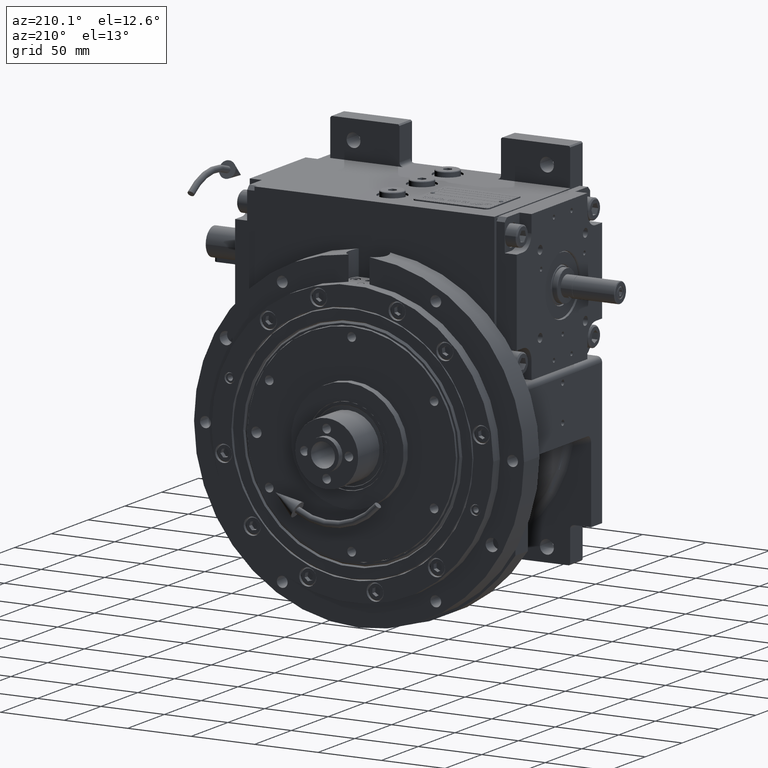
[diagram: clean part render]
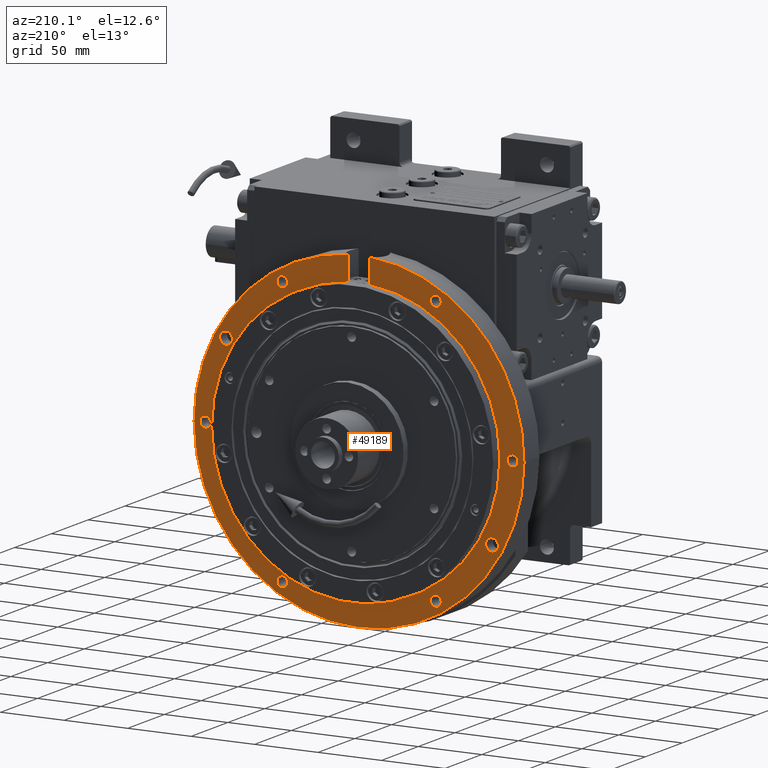
[diagram: same view with one face highlighted and labeled with its STEP entity id]
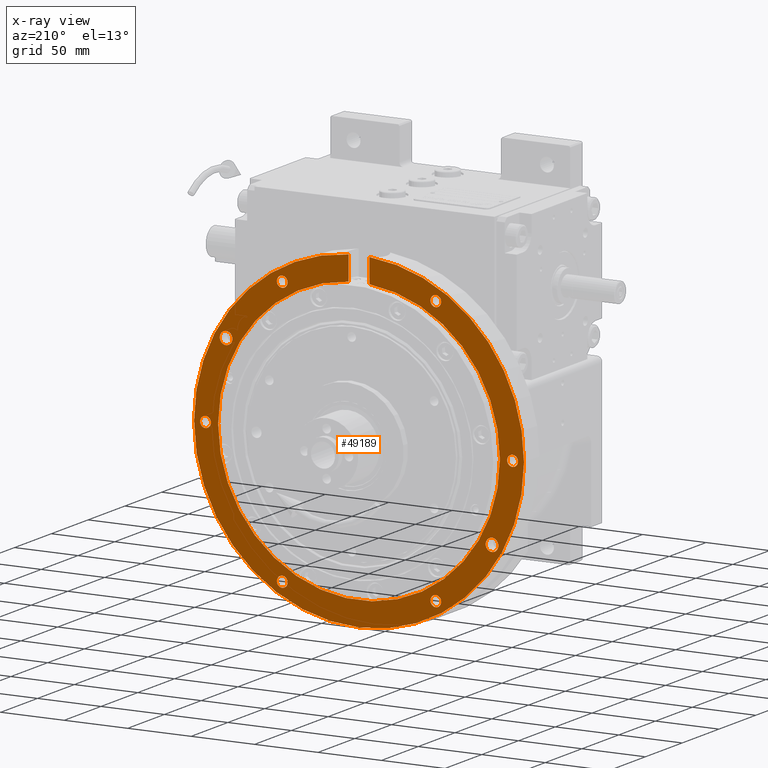
[diagram: x-ray of the same camera — body ghosted, the highlighted face saturated]
A machine part, auxiliary view. The second image highlights one B-rep face of the part: STEP entity #49189.
The next image is the same camera in x-ray: the body ghosted, the highlighted face saturated — about 0% of this face is hidden behind the body in this view.
In plain terms, the highlighted planar face has unit normal (0, -1, 0).
Its self-contained STEP definition (entity closure, byte-faithful):
#76 = ORIENTED_EDGE ( 'NONE', *, *, #48859, .F. ) ;
#155 = DIRECTION ( 'NONE',  ( 0.000000000000000000, 0.000000000000000000, 1.000000000000000000 ) ) ;
#794 = EDGE_LOOP ( 'NONE', ( #27148, #30465 ) ) ;
#1163 = DIRECTION ( 'NONE',  ( -1.000000000000000000, 0.000000000000000000, 0.000000000000000000 ) ) ;
#1235 = VERTEX_POINT ( 'NONE', #15329 ) ;
#1530 = EDGE_CURVE ( 'NONE', #68697, #44295, #18792, .T. ) ;
#1720 = EDGE_LOOP ( 'NONE', ( #60538, #9669 ) ) ;
#2411 = DIRECTION ( 'NONE',  ( -1.000000000000000000, -5.224578939412495427E-15, 0.000000000000000000 ) ) ;
#2748 = ORIENTED_EDGE ( 'NONE', *, *, #39788, .F. ) ;
#3550 = EDGE_CURVE ( 'NONE', #31178, #12717, #4723, .T. ) ;
#3655 = CARTESIAN_POINT ( 'NONE',  ( 60.50000000000000000, -104.7890738579170034, 21.00000000000000000 ) ) ;
#3709 = ORIENTED_EDGE ( 'NONE', *, *, #47733, .T. ) ;
#3948 = EDGE_CURVE ( 'NONE', #48028, #14514, #44547, .T. ) ;
#3954 = DIRECTION ( 'NONE',  ( 0.000000000000000000, 0.000000000000000000, 1.000000000000000000 ) ) ;
#4044 = LINE ( 'NONE', #37652, #31049 ) ;
#4179 = VERTEX_POINT ( 'NONE', #46237 ) ;
#4294 = AXIS2_PLACEMENT_3D ( 'NONE', #14674, #63747, #52294 ) ;
#4323 = CARTESIAN_POINT ( 'NONE',  ( 60.50000000000000000, 104.7890738579170034, 21.00000000000000000 ) ) ;
#4516 = CARTESIAN_POINT ( 'NONE',  ( -60.50000000000000000, 104.7890738579170034, 21.00000000000000000 ) ) ;
#4723 = CIRCLE ( 'NONE', #32185, 110.9999999999999858 ) ;
#4840 = CARTESIAN_POINT ( 'NONE',  ( -60.50000000000000000, -104.7890738579170034, 21.00000000000000000 ) ) ;
#4870 = EDGE_CURVE ( 'NONE', #12717, #39586, #28257, .T. ) ;
#5539 = AXIS2_PLACEMENT_3D ( 'NONE', #9894, #26378, #52527 ) ;
#6182 = DIRECTION ( 'NONE',  ( -1.000000000000000000, 0.000000000000000000, 0.000000000000000000 ) ) ;
#6297 = DIRECTION ( 'NONE',  ( 1.000000000000000000, 2.089831575764998299E-16, 0.000000000000000000 ) ) ;
#6974 = CARTESIAN_POINT ( 'NONE',  ( 99.78907385791659124, -60.50000000000081712, 21.00000000000000000 ) ) ;
#7702 = CARTESIAN_POINT ( 'NONE',  ( 8.291561975888500413, -129.7353074532911990, 21.00000000000000000 ) ) ;
#8002 = EDGE_LOOP ( 'NONE', ( #49177, #67969 ) ) ;
#8017 = CARTESIAN_POINT ( 'NONE',  ( -3.375077994860475252E-14, -8.312794896880859596E-15, 21.00000000000000000 ) ) ;
#8108 = CARTESIAN_POINT ( 'NONE',  ( 125.2500000000000000, -2.925257564283509760E-15, 21.00000000000000000 ) ) ;
#8380 = VERTEX_POINT ( 'NONE', #16684 ) ;
#8381 = DIRECTION ( 'NONE',  ( 1.000000000000000000, 0.000000000000000000, 0.000000000000000000 ) ) ;
#9301 = CARTESIAN_POINT ( 'NONE',  ( -60.50000000000000000, -104.7890738579170034, 21.00000000000000000 ) ) ;
#9467 = CARTESIAN_POINT ( 'NONE',  ( -8.291561975888470215, -110.6898821031081894, 21.00000000000000000 ) ) ;
#9623 = EDGE_CURVE ( 'NONE', #40041, #69851, #21158, .T. ) ;
#9669 = ORIENTED_EDGE ( 'NONE', *, *, #63326, .F. ) ;
#9894 = CARTESIAN_POINT ( 'NONE',  ( -104.7890738579170034, 60.50000000000009237, 21.00000000000000000 ) ) ;
#9932 = EDGE_CURVE ( 'NONE', #69679, #20883, #17758, .T. ) ;
#10054 = VERTEX_POINT ( 'NONE', #67519 ) ;
#10635 = VERTEX_POINT ( 'NONE', #18361 ) ;
#10848 = EDGE_CURVE ( 'NONE', #14514, #48028, #62380, .T. ) ;
#10955 = DIRECTION ( 'NONE',  ( 0.000000000000000000, 0.000000000000000000, 1.000000000000000000 ) ) ;
#11481 = CARTESIAN_POINT ( 'NONE',  ( -8.291561975888519953, -129.7353074532911990, 21.00000000000000000 ) ) ;
#11541 = CARTESIAN_POINT ( 'NONE',  ( -60.50000000000000000, 104.7890738579170034, 21.00000000000000000 ) ) ;
#11825 = ORIENTED_EDGE ( 'NONE', *, *, #4870, .F. ) ;
#12002 = CIRCLE ( 'NONE', #49722, 111.0000000000000000 ) ;
#12307 = ORIENTED_EDGE ( 'NONE', *, *, #52577, .T. ) ;
#12660 = CARTESIAN_POINT ( 'NONE',  ( -64.75000000000000000, -104.7890738579170034, 21.00000000000000000 ) ) ;
#12717 = VERTEX_POINT ( 'NONE', #30722 ) ;
#13050 = FACE_OUTER_BOUND ( 'NONE', #21173, .T. ) ;
#13152 = AXIS2_PLACEMENT_3D ( 'NONE', #43552, #44956, #6297 ) ;
#13555 = CARTESIAN_POINT ( 'NONE',  ( -7.105427357600998703E-15, 1.421085471520200056E-14, 21.00000000000000000 ) ) ;
#14197 = DIRECTION ( 'NONE',  ( 1.000000000000000000, 0.000000000000000000, 0.000000000000000000 ) ) ;
#14471 = DIRECTION ( 'NONE',  ( 0.000000000000000000, 0.000000000000000000, -1.000000000000000000 ) ) ;
#14514 = VERTEX_POINT ( 'NONE', #65434 ) ;
#14674 = CARTESIAN_POINT ( 'NONE',  ( -3.375077994860475252E-14, -8.312794896880859596E-15, 21.00000000000000000 ) ) ;
#14862 = ORIENTED_EDGE ( 'NONE', *, *, #28258, .F. ) ;
#15285 = DIRECTION ( 'NONE',  ( 1.000000000000000000, 0.000000000000000000, 0.000000000000000000 ) ) ;
#15329 = CARTESIAN_POINT ( 'NONE',  ( -99.78907385791700335, 60.50000000000009237, 21.00000000000000000 ) ) ;
#15840 = CIRCLE ( 'NONE', #34116, 130.0000000000000568 ) ;
#16291 = DIRECTION ( 'NONE',  ( -1.000000000000000000, 0.000000000000000000, 0.000000000000000000 ) ) ;
#16476 = ORIENTED_EDGE ( 'NONE', *, *, #35099, .T. ) ;
#16684 = CARTESIAN_POINT ( 'NONE',  ( 8.291561975888500413, -129.7353074532911990, 21.00000000000000000 ) ) ;
#17440 = CARTESIAN_POINT ( 'NONE',  ( 56.25000000000000000, 104.7890738579170034, 21.00000000000000000 ) ) ;
#17758 = CIRCLE ( 'NONE', #13152, 4.250000000000003553 ) ;
#18107 = LINE ( 'NONE', #7702, #35313 ) ;
#18361 = CARTESIAN_POINT ( 'NONE',  ( -56.25000000000000000, 104.7890738579170034, 21.00000000000000000 ) ) ;
#18791 = FACE_BOUND ( 'NONE', #47224, .T. ) ;
#18792 = CIRCLE ( 'NONE', #58831, 4.250000000000003553 ) ;
#19189 = ORIENTED_EDGE ( 'NONE', *, *, #3948, .F. ) ;
#19233 = VERTEX_POINT ( 'NONE', #17440 ) ;
#19855 = FACE_BOUND ( 'NONE', #8002, .T. ) ;
#19912 = CARTESIAN_POINT ( 'NONE',  ( -125.2500000000000000, 7.408868440625379257E-15, 21.00000000000000000 ) ) ;
#19948 = CARTESIAN_POINT ( 'NONE',  ( 60.50000000000000000, -104.7890738579170034, 21.00000000000000000 ) ) ;
#20018 = DIRECTION ( 'NONE',  ( 1.000000000000000000, -1.280257181549730054E-16, 0.000000000000000000 ) ) ;
#20104 = DIRECTION ( 'NONE',  ( 0.000000000000000000, 0.000000000000000000, 1.000000000000000000 ) ) ;
#20883 = VERTEX_POINT ( 'NONE', #35065 ) ;
#21158 = CIRCLE ( 'NONE', #56565, 4.250000000000003553 ) ;
#21173 = EDGE_LOOP ( 'NONE', ( #24669, #11825, #32281, #69549, #3709, #16476, #45170, #12307 ) ) ;
#21302 = CIRCLE ( 'NONE', #55553, 4.250000000000003553 ) ;
#22669 = DIRECTION ( 'NONE',  ( 0.000000000000000000, 0.000000000000000000, 1.000000000000000000 ) ) ;
#22809 = EDGE_CURVE ( 'NONE', #27720, #42838, #65696, .T. ) ;
#23059 = ORIENTED_EDGE ( 'NONE', *, *, #61753, .F. ) ;
#23415 = DIRECTION ( 'NONE',  ( -1.000000000000000000, 0.000000000000000000, 0.000000000000000000 ) ) ;
#23720 = DIRECTION ( 'NONE',  ( 0.07469875653953610140, -0.9972061450730471677, 0.000000000000000000 ) ) ;
#23781 = EDGE_CURVE ( 'NONE', #39586, #43405, #12002, .T. ) ;
#23923 = CARTESIAN_POINT ( 'NONE',  ( -121.0000000000000000, 2.220446049250314659E-14, 21.00000000000000000 ) ) ;
#24032 = EDGE_CURVE ( 'NONE', #63599, #10054, #48666, .T. ) ;
#24186 = DIRECTION ( 'NONE',  ( -9.326947583153779291E-17, 1.000000000000000000, 0.000000000000000000 ) ) ;
#24640 = VERTEX_POINT ( 'NONE', #25714 ) ;
#24669 = ORIENTED_EDGE ( 'NONE', *, *, #23781, .F. ) ;
#24729 = DIRECTION ( 'NONE',  ( 0.06378124596837327076, -0.9979639034868555969, 0.000000000000000000 ) ) ;
#25309 = DIRECTION ( 'NONE',  ( 1.000000000000000000, 0.000000000000000000, 0.000000000000000000 ) ) ;
#25379 = DIRECTION ( 'NONE',  ( 0.000000000000000000, 0.000000000000000000, 1.000000000000000000 ) ) ;
#25514 = DIRECTION ( 'NONE',  ( 0.000000000000000000, 0.000000000000000000, 1.000000000000000000 ) ) ;
#25714 = CARTESIAN_POINT ( 'NONE',  ( -109.7890738579169891, 60.50000000000009237, 21.00000000000000000 ) ) ;
#25734 = VERTEX_POINT ( 'NONE', #41906 ) ;
#25808 = DIRECTION ( 'NONE',  ( 1.000000000000000000, 0.000000000000000000, 0.000000000000000000 ) ) ;
#26378 = DIRECTION ( 'NONE',  ( 0.000000000000000000, 0.000000000000000000, 1.000000000000000000 ) ) ;
#26745 = CARTESIAN_POINT ( 'NONE',  ( -104.7890738579170034, 60.50000000000009237, 21.00000000000000000 ) ) ;
#27148 = ORIENTED_EDGE ( 'NONE', *, *, #44430, .F. ) ;
#27358 = EDGE_LOOP ( 'NONE', ( #19189, #61351 ) ) ;
#27720 = VERTEX_POINT ( 'NONE', #36014 ) ;
#27952 = DIRECTION ( 'NONE',  ( 0.000000000000000000, 0.000000000000000000, 1.000000000000000000 ) ) ;
#28201 = CIRCLE ( 'NONE', #68222, 4.250000000000003553 ) ;
#28257 = CIRCLE ( 'NONE', #37381, 111.0000000000000000 ) ;
#28258 = EDGE_CURVE ( 'NONE', #69851, #40041, #30099, .T. ) ;
#28426 = CARTESIAN_POINT ( 'NONE',  ( 104.7890738579165770, -60.50000000000081712, 21.00000000000000000 ) ) ;
#29176 = DIRECTION ( 'NONE',  ( 0.06378124596837327076, -0.9979639034868555969, 0.000000000000000000 ) ) ;
#29527 = DIRECTION ( 'NONE',  ( 0.000000000000000000, 0.000000000000000000, 1.000000000000000000 ) ) ;
#29912 = CARTESIAN_POINT ( 'NONE',  ( 2.842170943040399481E-14, 2.842170943040399481E-14, 21.00000000000000000 ) ) ;
#30099 = CIRCLE ( 'NONE', #54126, 4.250000000000003553 ) ;
#30465 = ORIENTED_EDGE ( 'NONE', *, *, #1530, .F. ) ;
#30722 = CARTESIAN_POINT ( 'NONE',  ( 111.0000000000000000, -9.062386313690408852E-15, 21.00000000000000000 ) ) ;
#30972 = EDGE_LOOP ( 'NONE', ( #14862, #57805 ) ) ;
#31049 = VECTOR ( 'NONE', #69580, 1000.000000000000000 ) ;
#31178 = VERTEX_POINT ( 'NONE', #56938 ) ;
#31720 = DIRECTION ( 'NONE',  ( 0.000000000000000000, 0.000000000000000000, 1.000000000000000000 ) ) ;
#32185 = AXIS2_PLACEMENT_3D ( 'NONE', #62370, #67746, #23720 ) ;
#32281 = ORIENTED_EDGE ( 'NONE', *, *, #3550, .F. ) ;
#32965 = DIRECTION ( 'NONE',  ( 1.000000000000000000, -5.224578939412495427E-15, 0.000000000000000000 ) ) ;
#33948 = CIRCLE ( 'NONE', #67156, 4.250000000000003553 ) ;
#34116 = AXIS2_PLACEMENT_3D ( 'NONE', #8017, #29527, #29176 ) ;
#34279 = AXIS2_PLACEMENT_3D ( 'NONE', #4323, #20104, #42261 ) ;
#34408 = CARTESIAN_POINT ( 'NONE',  ( -111.0000000000000000, 1.359357947053561880E-14, 21.00000000000000000 ) ) ;
#34893 = FACE_BOUND ( 'NONE', #30972, .T. ) ;
#35065 = CARTESIAN_POINT ( 'NONE',  ( 116.7500000000000000, -2.469622813541794926E-15, 21.00000000000000000 ) ) ;
#35099 = EDGE_CURVE ( 'NONE', #4179, #27720, #50041, .T. ) ;
#35313 = VECTOR ( 'NONE', #24186, 1000.000000000000000 ) ;
#35393 = CIRCLE ( 'NONE', #64001, 4.250000000000003553 ) ;
#36014 = CARTESIAN_POINT ( 'NONE',  ( -130.0000000000000000, 1.592040838891559450E-14, 21.00000000000000000 ) ) ;
#36390 = CIRCLE ( 'NONE', #5539, 4.999999999999990230 ) ;
#36766 = VERTEX_POINT ( 'NONE', #46824 ) ;
#37381 = AXIS2_PLACEMENT_3D ( 'NONE', #13555, #25379, #20018 ) ;
#37652 = CARTESIAN_POINT ( 'NONE',  ( -8.291561975888500413, -129.7353074532911990, 21.00000000000000000 ) ) ;
#38927 = DIRECTION ( 'NONE',  ( 0.000000000000000000, 0.000000000000000000, 1.000000000000000000 ) ) ;
#39491 = EDGE_LOOP ( 'NONE', ( #76, #2748 ) ) ;
#39586 = VERTEX_POINT ( 'NONE', #34408 ) ;
#39788 = EDGE_CURVE ( 'NONE', #19233, #25734, #67466, .T. ) ;
#40041 = VERTEX_POINT ( 'NONE', #19912 ) ;
#40460 = AXIS2_PLACEMENT_3D ( 'NONE', #3655, #25514, #47343 ) ;
#40793 = CARTESIAN_POINT ( 'NONE',  ( -3.375077994860475252E-14, -8.312794896880859596E-15, 21.00000000000000000 ) ) ;
#41311 = EDGE_LOOP ( 'NONE', ( #61413, #60021 ) ) ;
#41665 = CIRCLE ( 'NONE', #55430, 4.250000000000003553 ) ;
#41748 = CARTESIAN_POINT ( 'NONE',  ( -116.7500000000000000, 6.953233689883671129E-15, 21.00000000000000000 ) ) ;
#41906 = CARTESIAN_POINT ( 'NONE',  ( 64.75000000000000000, 104.7890738579170034, 21.00000000000000000 ) ) ;
#41924 = EDGE_CURVE ( 'NONE', #1235, #24640, #51710, .T. ) ;
#42027 = AXIS2_PLACEMENT_3D ( 'NONE', #55429, #38927, #42646 ) ;
#42261 = DIRECTION ( 'NONE',  ( -1.000000000000000000, 0.000000000000000000, 0.000000000000000000 ) ) ;
#42592 = CARTESIAN_POINT ( 'NONE',  ( -56.25000000000000000, -104.7890738579170034, 21.00000000000000000 ) ) ;
#42646 = DIRECTION ( 'NONE',  ( -1.000000000000000000, 0.000000000000000000, 0.000000000000000000 ) ) ;
#42838 = VERTEX_POINT ( 'NONE', #11481 ) ;
#43405 = VERTEX_POINT ( 'NONE', #9467 ) ;
#43443 = AXIS2_PLACEMENT_3D ( 'NONE', #57448, #14471, #8381 ) ;
#43532 = DIRECTION ( 'NONE',  ( 1.000000000000000000, 0.000000000000000000, 0.000000000000000000 ) ) ;
#43552 = CARTESIAN_POINT ( 'NONE',  ( 121.0000000000000000, -8.881784197001250351E-16, 21.00000000000000000 ) ) ;
#44295 = VERTEX_POINT ( 'NONE', #42592 ) ;
#44430 = EDGE_CURVE ( 'NONE', #44295, #68697, #21302, .T. ) ;
#44547 = CIRCLE ( 'NONE', #67461, 4.250000000000003553 ) ;
#44832 = CARTESIAN_POINT ( 'NONE',  ( 64.75000000000000000, -104.7890738579170034, 21.00000000000000000 ) ) ;
#44956 = DIRECTION ( 'NONE',  ( 0.000000000000000000, 0.000000000000000000, 1.000000000000000000 ) ) ;
#45170 = ORIENTED_EDGE ( 'NONE', *, *, #22809, .T. ) ;
#45643 = FACE_BOUND ( 'NONE', #1720, .T. ) ;
#46237 = CARTESIAN_POINT ( 'NONE',  ( 130.0000000000000000, 0.000000000000000000, 21.00000000000000000 ) ) ;
#46700 = PLANE ( 'NONE',  #43443 ) ;
#46824 = CARTESIAN_POINT ( 'NONE',  ( -64.75000000000000000, 104.7890738579170034, 21.00000000000000000 ) ) ;
#47224 = EDGE_LOOP ( 'NONE', ( #55390, #23059 ) ) ;
#47343 = DIRECTION ( 'NONE',  ( -1.000000000000000000, 0.000000000000000000, 0.000000000000000000 ) ) ;
#47600 = CARTESIAN_POINT ( 'NONE',  ( 60.50000000000000000, 104.7890738579170034, 21.00000000000000000 ) ) ;
#47733 = EDGE_CURVE ( 'NONE', #8380, #4179, #15840, .T. ) ;
#48028 = VERTEX_POINT ( 'NONE', #44832 ) ;
#48666 = CIRCLE ( 'NONE', #65854, 4.999999999999990230 ) ;
#48859 = EDGE_CURVE ( 'NONE', #25734, #19233, #35393, .T. ) ;
#49177 = ORIENTED_EDGE ( 'NONE', *, *, #61143, .F. ) ;
#49189 = ADVANCED_FACE ( 'NONE', ( #51382, #45643, #62814, #34893, #19855, #67503, #18791, #62110, #13050 ), #46700, .F. ) ;
#49619 = AXIS2_PLACEMENT_3D ( 'NONE', #40793, #58013, #24729 ) ;
#49722 = AXIS2_PLACEMENT_3D ( 'NONE', #29912, #58194, #52810 ) ;
#49874 = CARTESIAN_POINT ( 'NONE',  ( 121.0000000000000000, 0.000000000000000000, 21.00000000000000000 ) ) ;
#50041 = CIRCLE ( 'NONE', #4294, 130.0000000000000568 ) ;
#50217 = DIRECTION ( 'NONE',  ( 0.000000000000000000, 0.000000000000000000, 1.000000000000000000 ) ) ;
#51202 = CIRCLE ( 'NONE', #42027, 4.999999999999990230 ) ;
#51382 = FACE_BOUND ( 'NONE', #41311, .T. ) ;
#51710 = CIRCLE ( 'NONE', #57433, 4.999999999999990230 ) ;
#52294 = DIRECTION ( 'NONE',  ( 0.06378124596837327076, -0.9979639034868555969, 0.000000000000000000 ) ) ;
#52527 = DIRECTION ( 'NONE',  ( 1.000000000000000000, 0.000000000000000000, 0.000000000000000000 ) ) ;
#52577 = EDGE_CURVE ( 'NONE', #42838, #43405, #4044, .T. ) ;
#52810 = DIRECTION ( 'NONE',  ( -1.000000000000000000, -1.335867563952105914E-16, 0.000000000000000000 ) ) ;
#54126 = AXIS2_PLACEMENT_3D ( 'NONE', #60880, #27952, #32965 ) ;
#55390 = ORIENTED_EDGE ( 'NONE', *, *, #9932, .F. ) ;
#55429 = CARTESIAN_POINT ( 'NONE',  ( 104.7890738579165770, -60.50000000000081712, 21.00000000000000000 ) ) ;
#55430 = AXIS2_PLACEMENT_3D ( 'NONE', #11541, #22669, #6182 ) ;
#55553 = AXIS2_PLACEMENT_3D ( 'NONE', #9301, #3954, #25808 ) ;
#56565 = AXIS2_PLACEMENT_3D ( 'NONE', #23923, #57557, #2411 ) ;
#56938 = CARTESIAN_POINT ( 'NONE',  ( 8.291561975888509295, -110.6898821031081894, 21.00000000000000000 ) ) ;
#57433 = AXIS2_PLACEMENT_3D ( 'NONE', #26745, #69380, #15285 ) ;
#57448 = CARTESIAN_POINT ( 'NONE',  ( 0.000000000000000000, 0.000000000000000000, 21.00000000000000000 ) ) ;
#57474 = EDGE_CURVE ( 'NONE', #36766, #10635, #41665, .T. ) ;
#57557 = DIRECTION ( 'NONE',  ( 0.000000000000000000, 0.000000000000000000, 1.000000000000000000 ) ) ;
#57805 = ORIENTED_EDGE ( 'NONE', *, *, #9623, .F. ) ;
#57896 = DIRECTION ( 'NONE',  ( 0.000000000000000000, 0.000000000000000000, 1.000000000000000000 ) ) ;
#58013 = DIRECTION ( 'NONE',  ( 0.000000000000000000, 0.000000000000000000, 1.000000000000000000 ) ) ;
#58194 = DIRECTION ( 'NONE',  ( 0.000000000000000000, 0.000000000000000000, 1.000000000000000000 ) ) ;
#58831 = AXIS2_PLACEMENT_3D ( 'NONE', #4840, #31720, #16291 ) ;
#60021 = ORIENTED_EDGE ( 'NONE', *, *, #24032, .F. ) ;
#60538 = ORIENTED_EDGE ( 'NONE', *, *, #41924, .F. ) ;
#60880 = CARTESIAN_POINT ( 'NONE',  ( -121.0000000000000000, 2.220446049250314659E-14, 21.00000000000000000 ) ) ;
#61143 = EDGE_CURVE ( 'NONE', #10635, #36766, #28201, .T. ) ;
#61351 = ORIENTED_EDGE ( 'NONE', *, *, #10848, .F. ) ;
#61413 = ORIENTED_EDGE ( 'NONE', *, *, #62005, .F. ) ;
#61753 = EDGE_CURVE ( 'NONE', #20883, #69679, #33948, .T. ) ;
#62005 = EDGE_CURVE ( 'NONE', #10054, #63599, #51202, .T. ) ;
#62110 = FACE_BOUND ( 'NONE', #27358, .T. ) ;
#62370 = CARTESIAN_POINT ( 'NONE',  ( 1.421085471520200056E-14, -7.105427357600998703E-15, 21.00000000000000000 ) ) ;
#62380 = CIRCLE ( 'NONE', #40460, 4.250000000000003553 ) ;
#62814 = FACE_BOUND ( 'NONE', #794, .T. ) ;
#63262 = DIRECTION ( 'NONE',  ( 0.000000000000000000, 0.000000000000000000, 1.000000000000000000 ) ) ;
#63326 = EDGE_CURVE ( 'NONE', #24640, #1235, #36390, .T. ) ;
#63599 = VERTEX_POINT ( 'NONE', #6974 ) ;
#63747 = DIRECTION ( 'NONE',  ( 0.000000000000000000, 0.000000000000000000, 1.000000000000000000 ) ) ;
#64001 = AXIS2_PLACEMENT_3D ( 'NONE', #47600, #10955, #43532 ) ;
#64980 = EDGE_CURVE ( 'NONE', #8380, #31178, #18107, .T. ) ;
#65434 = CARTESIAN_POINT ( 'NONE',  ( 56.25000000000000000, -104.7890738579170034, 21.00000000000000000 ) ) ;
#65696 = CIRCLE ( 'NONE', #49619, 130.0000000000000568 ) ;
#65854 = AXIS2_PLACEMENT_3D ( 'NONE', #28426, #155, #23415 ) ;
#67156 = AXIS2_PLACEMENT_3D ( 'NONE', #49874, #50217, #1163 ) ;
#67461 = AXIS2_PLACEMENT_3D ( 'NONE', #19948, #63262, #14197 ) ;
#67466 = CIRCLE ( 'NONE', #34279, 4.250000000000003553 ) ;
#67503 = FACE_BOUND ( 'NONE', #39491, .T. ) ;
#67519 = CARTESIAN_POINT ( 'NONE',  ( 109.7890738579165770, -60.50000000000081712, 21.00000000000000000 ) ) ;
#67746 = DIRECTION ( 'NONE',  ( 0.000000000000000000, 0.000000000000000000, 1.000000000000000000 ) ) ;
#67969 = ORIENTED_EDGE ( 'NONE', *, *, #57474, .F. ) ;
#68222 = AXIS2_PLACEMENT_3D ( 'NONE', #4516, #57896, #25309 ) ;
#68697 = VERTEX_POINT ( 'NONE', #12660 ) ;
#69380 = DIRECTION ( 'NONE',  ( 0.000000000000000000, 0.000000000000000000, 1.000000000000000000 ) ) ;
#69549 = ORIENTED_EDGE ( 'NONE', *, *, #64980, .F. ) ;
#69580 = DIRECTION ( 'NONE',  ( -9.326947583153779291E-17, 1.000000000000000000, 0.000000000000000000 ) ) ;
#69679 = VERTEX_POINT ( 'NONE', #8108 ) ;
#69851 = VERTEX_POINT ( 'NONE', #41748 ) ;